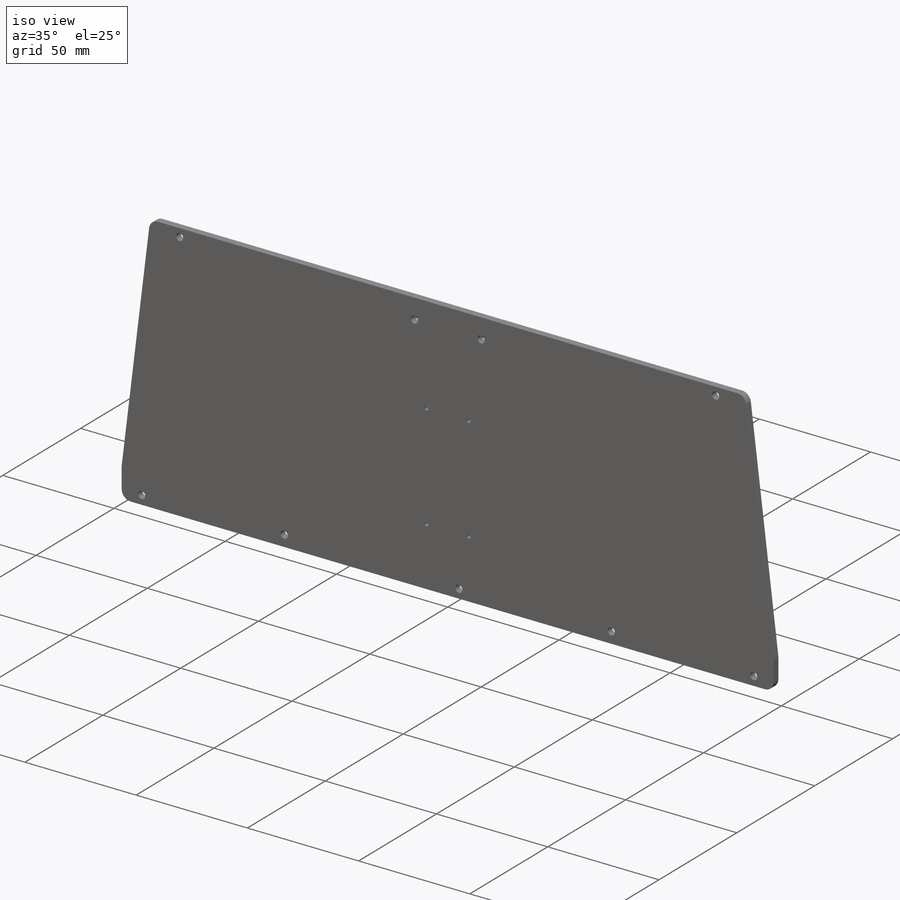
[diagram: iso view]
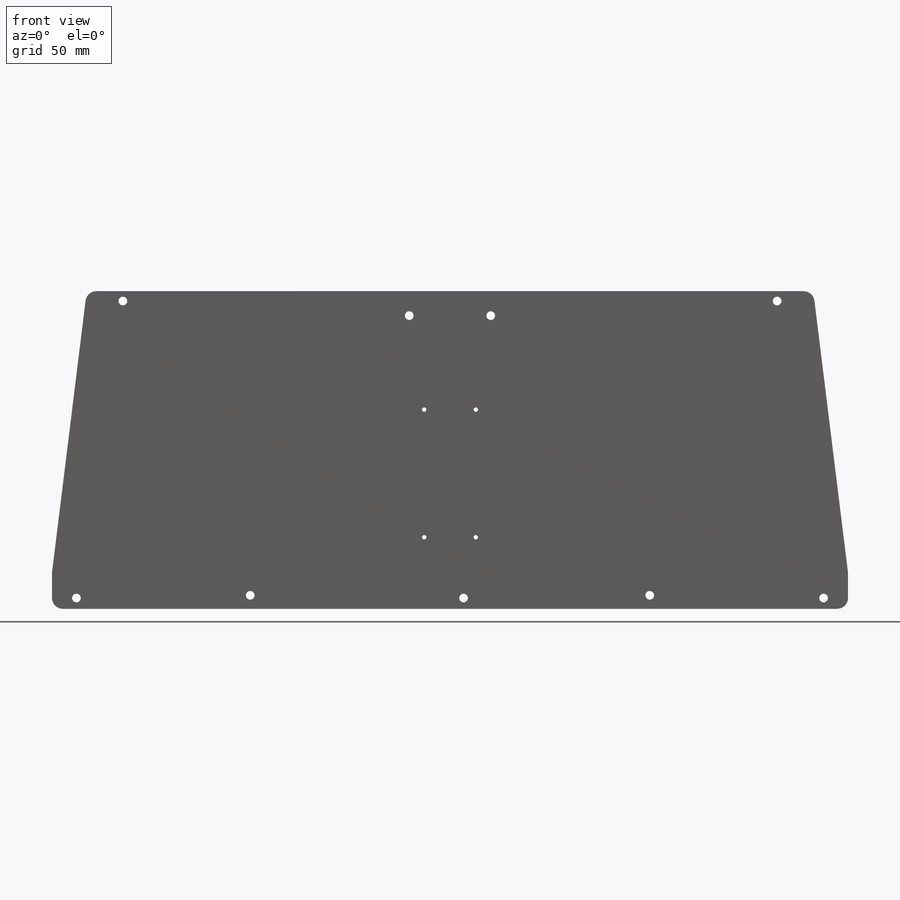
[diagram: front view]
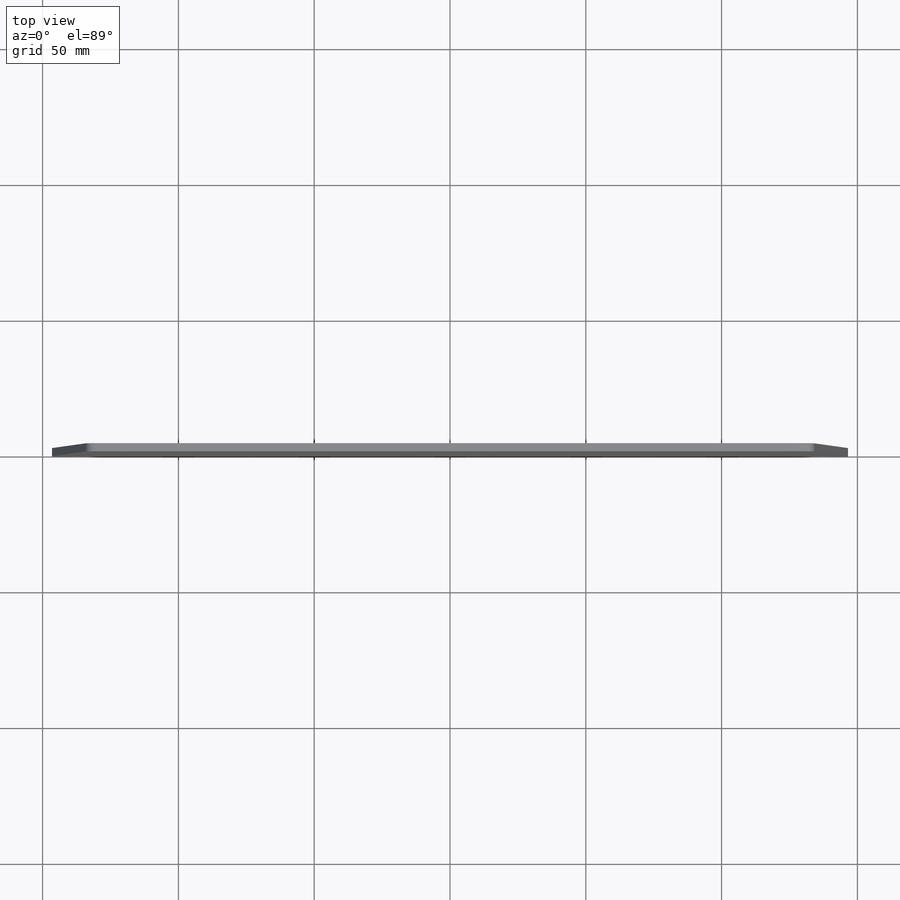
[diagram: top view]
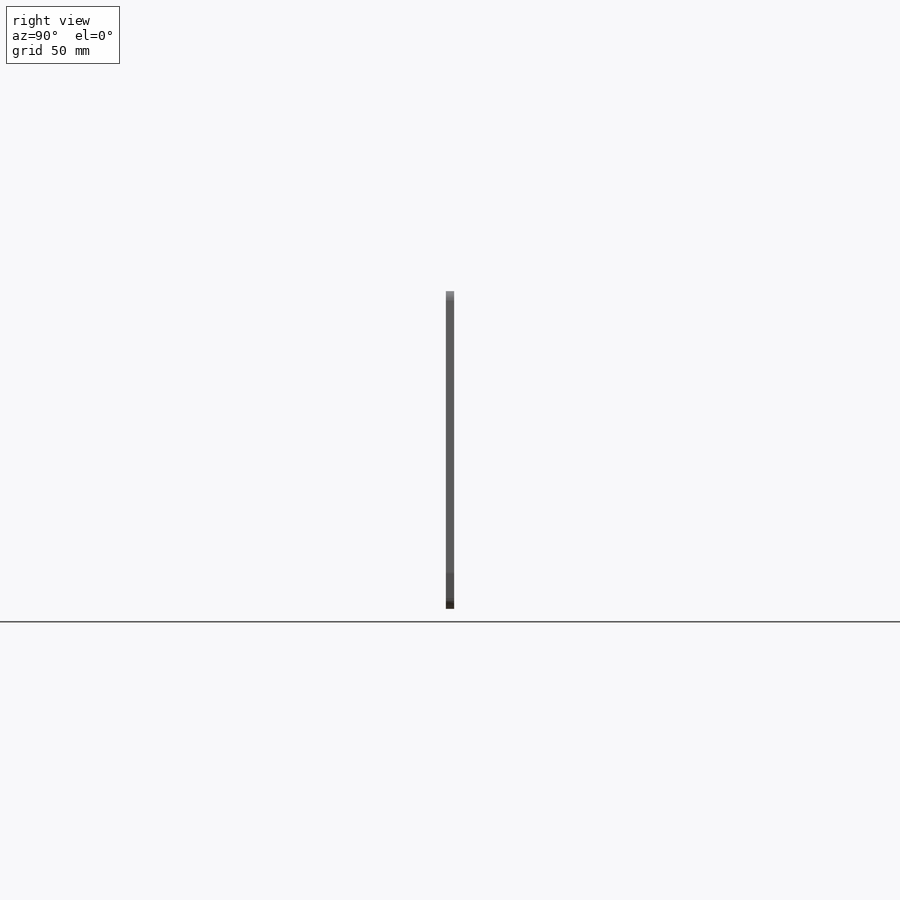
[diagram: right view]
SOLIDWORKS PART (.sldprt)
format: sldprt  version: not decoded by parser v0  size: 558,592 bytes
history: native  units: mm
features: sketch x5, hole x2, material x1, plane x1, extrude x1 (+11 scaffold rows collapsed)
feature tree (21):
  scaffold x11  (default folders/planes/origin — collapsed)
  material  "Material <not specified>"
  plane  "Plane1"
  sketch  "Sketch1"  dims[c1.D2=15.0mm c1.D1=~79.35051mm c2.D2=15.0mm c2.D3=~18.823338mm c2.D1=0.0mm c3.D2=5.0mm]
  extrude  "Boss-Extrude1"  Depth=3mm
  hole  "Ø3.2 (3.2) Diameter Hole1"  Diameter=3.2mm Depth=15mm
  sketch  "Sketch4"
  sketch  "Sketch3"  dims[hole-wizard template sketch: 47 standard entries collapsed; hole parameters kept: c15.Hole Depth=15.0mm c15.D3=~14.816244mm c15.Drill Angle=118.0deg]
  hole  "Ø1.6 (1.6) Diameter Hole1"  Diameter=1.6mm Depth=15mm
  sketch  "Sketch6"
  sketch  "Sketch5"  dims[hole-wizard template sketch: 47 standard entries collapsed; hole parameters kept: c15.Hole Depth=15.0mm c15.D3=~14.816244mm c15.Drill Angle=118.0deg]
decode coverage: 6 of 8 modeling features carry decoded parameters
note: ~ marks probable driven/reference dimensions
note: suppression state not decoded; provenance and decode notes live in map.json
